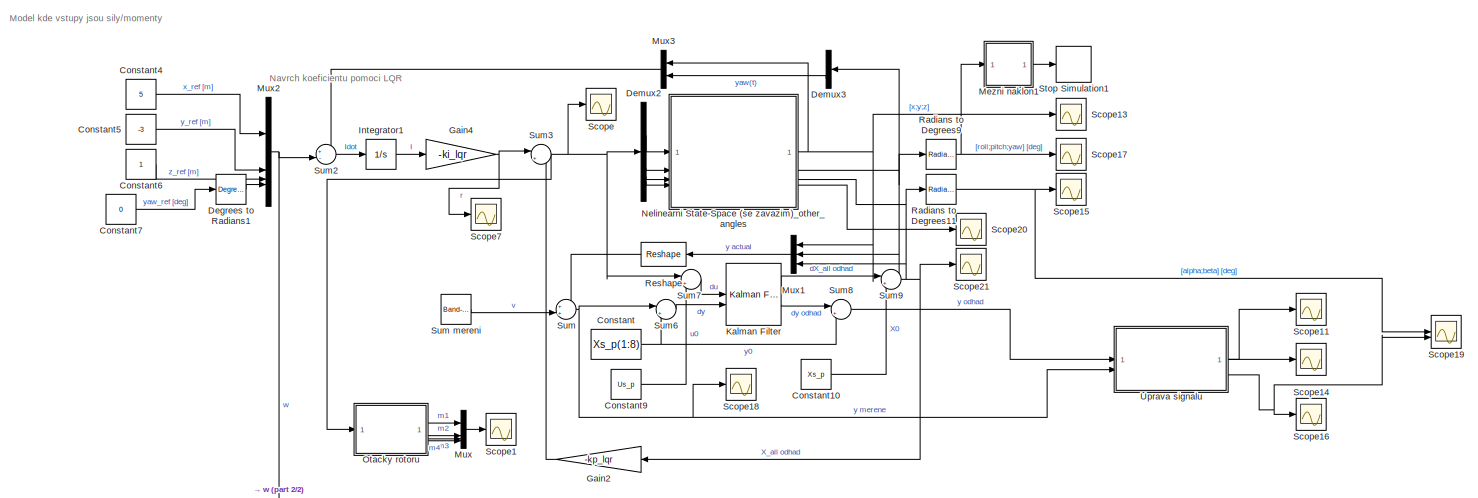
[diagram: root canvas - part 1/2, full width, top band]
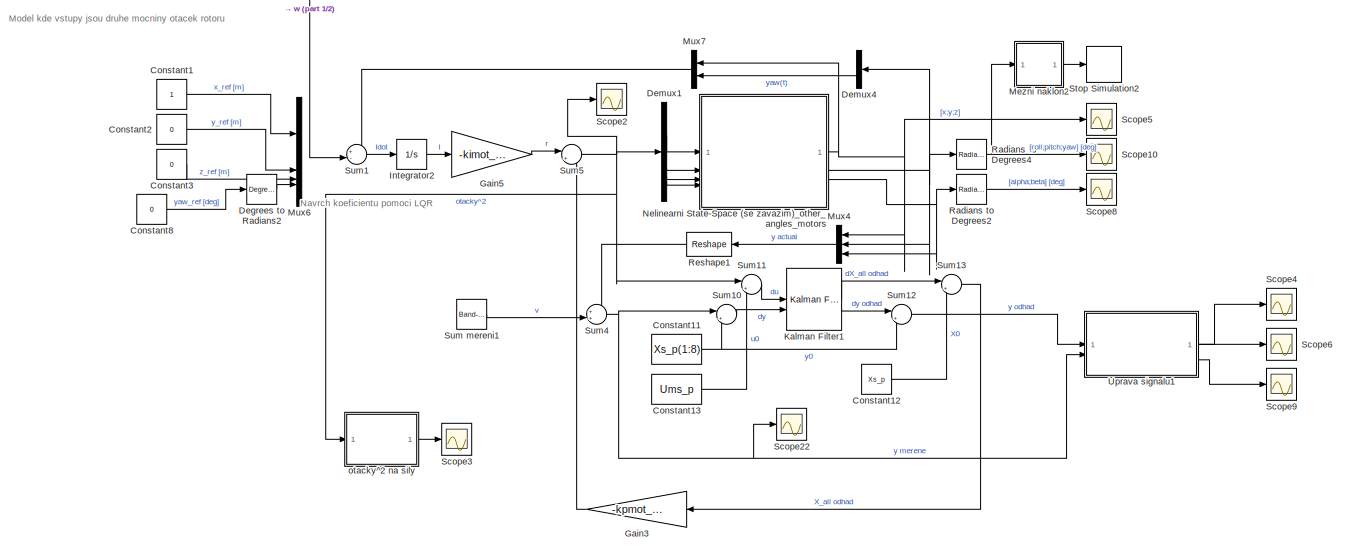
[diagram: root canvas - part 2/2, full width, bottom band]
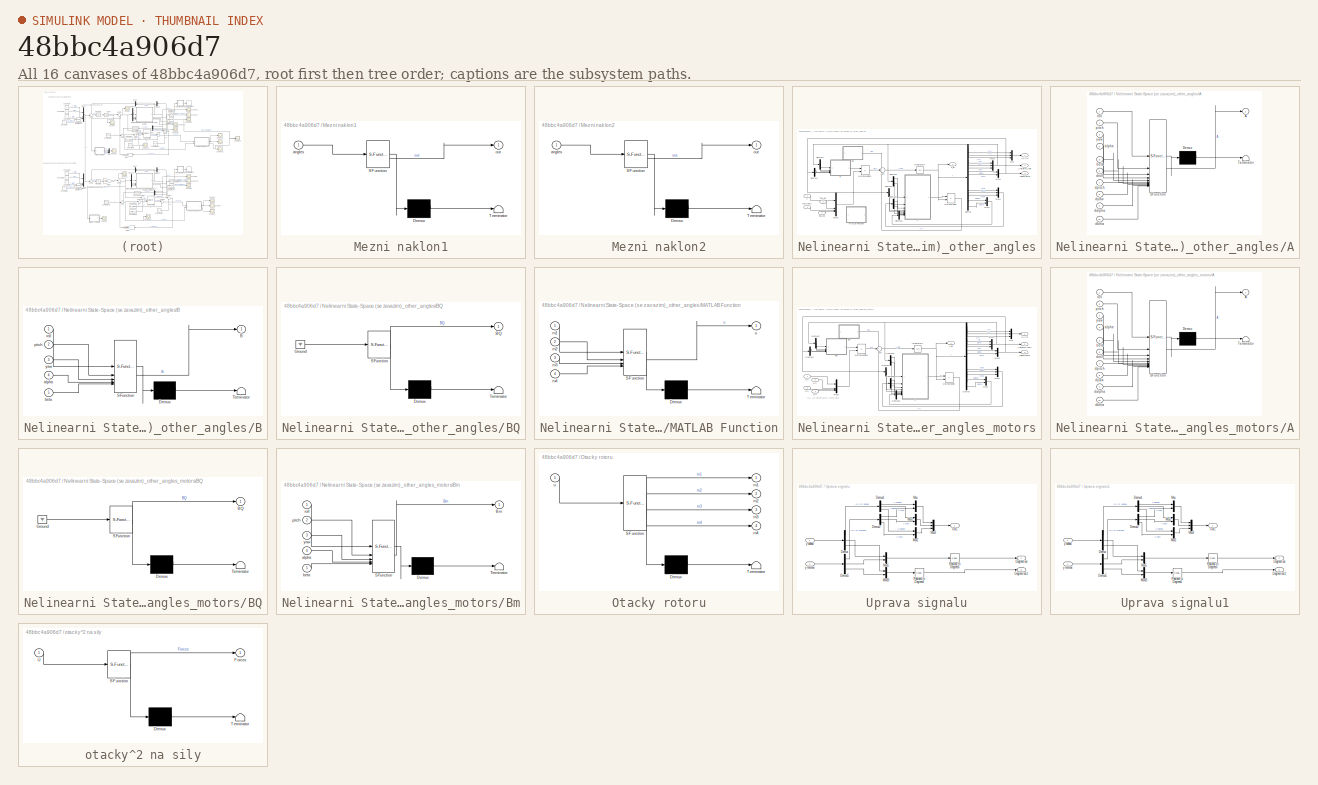
[diagram: thumbnail index - all 16 canvases of the model, root first then tree order]
MODEL slx_48bbc4a906d7
KIND model
CONFIG AbsTol = auto
CONFIG EnableMultiTasking = off
CONFIG FixedStep = 0.05
CONFIG MaxStep = auto
CONFIG MinStep = auto
CONFIG RelTol = 1e-3
CONFIG SampleTimeConstraint = Unconstrained
CONFIG SolverName = ode4
CONFIG StartTime = 0.0
CONFIG StopTime = 20
BLOCK [Constant] Constant
  Value = Xs_p(1:8)
BLOCK [Constant] Constant1
  Commented = on
BLOCK [Constant] Constant10
  Value = Xs_p
BLOCK [Constant] Constant11
  Value = Xs_p(1:8)
BLOCK [Constant] Constant12
  Value = Xs_p
BLOCK [Constant] Constant13
  Value = Ums_p
BLOCK [Constant] Constant2
  Commented = on
  Value = 0
BLOCK [Constant] Constant3
  Commented = on
  Value = 0
BLOCK [Constant] Constant4
  Value = 5
BLOCK [Constant] Constant5
  Value = -3
BLOCK [Constant] Constant6
BLOCK [Constant] Constant7
  Value = 0
BLOCK [Constant] Constant8
  Commented = on
  Value = 0
BLOCK [Constant] Constant9
  Value = Us_p
BLOCK [Reference] Degrees to Radians1  REF=simulink_extras/Transformations/Degrees to
Radians
  SourceBlock = simulink_extras/Transformations/Degrees to\nRadians
  SourceType = DegreesToRadians
BLOCK [Reference] Degrees to Radians2  REF=simulink_extras/Transformations/Degrees to
Radians
  Commented = on
  SourceBlock = simulink_extras/Transformations/Degrees to\nRadians
  SourceType = DegreesToRadians
BLOCK [Demux] Demux1
BLOCK [Demux] Demux2
BLOCK [Demux] Demux3
  Outputs = 3
BLOCK [Demux] Demux4
  Outputs = 3
BLOCK [Gain] Gain2
  Gain = -kp_lqr
  Multiplication = Matrix(K*u)
BLOCK [Gain] Gain3
  Gain = -kpmot_lqr
  Multiplication = Matrix(K*u)
BLOCK [Gain] Gain4
  Gain = -ki_lqr
  Multiplication = Matrix(K*u)
BLOCK [Gain] Gain5
  Gain = -kimot_lqr
  Multiplication = Matrix(K*u)
BLOCK [Integrator] Integrator1
BLOCK [Integrator] Integrator2
BLOCK [Reference] Kalman Filter  REF=ctrlSharedLib/Kalman Filter
  LibrarySourceBlock = cstblocks/State Estimation/Kalman Filter
  SourceBlock = ctrlSharedLib/Kalman Filter
  SourceType = ctrlKalmanFilter
BLOCK [Reference] Kalman Filter1  REF=ctrlSharedLib/Kalman Filter
  LibrarySourceBlock = cstblocks/State Estimation/Kalman Filter
  SourceBlock = ctrlSharedLib/Kalman Filter
  SourceType = ctrlKalmanFilter
BLOCK [SubSystem] Mezni naklon1
  ErrorFcn = Stateflow.Translate.translate
  PermitHierarchicalResolution = ExplicitOnly
  SFBlockType = MATLAB Function
  TreatAsAtomicUnit = on
BLOCK [Demux] Mezni naklon1/ Demux 
  Outputs = 1
BLOCK [S-Function] Mezni naklon1/ SFunction 
  EnableBusSupport = on
  FunctionName = sf_sfun
  PortCounts = [1 2]
  SFcnIsStateOwnerBlock = off
  SFunctionDeploymentMode = off
  Tag = Stateflow S-Function 2
BLOCK [Terminator] Mezni naklon1/ Terminator 
BLOCK [Inport] Mezni naklon1/angles
BLOCK [Outport] Mezni naklon1/out
BLOCK [SubSystem] Mezni naklon2
  ErrorFcn = Stateflow.Translate.translate
  PermitHierarchicalResolution = ExplicitOnly
  SFBlockType = MATLAB Function
  TreatAsAtomicUnit = on
BLOCK [Demux] Mezni naklon2/ Demux 
  Outputs = 1
BLOCK [S-Function] Mezni naklon2/ SFunction 
  EnableBusSupport = on
  FunctionName = sf_sfun
  PortCounts = [1 2]
  SFcnIsStateOwnerBlock = off
  SFunctionDeploymentMode = off
  Tag = Stateflow S-Function 9
BLOCK [Terminator] Mezni naklon2/ Terminator 
BLOCK [Inport] Mezni naklon2/angles
BLOCK [Outport] Mezni naklon2/out
BLOCK [Mux] Mux
  DisplayOption = bar
BLOCK [Mux] Mux1
  DisplayOption = bar
  Inputs = 3
BLOCK [Mux] Mux2
  DisplayOption = bar
BLOCK [Mux] Mux3
  DisplayOption = bar
  Inputs = 2
BLOCK [Mux] Mux4
  DisplayOption = bar
  Inputs = 3
BLOCK [Mux] Mux6
  Commented = on
  DisplayOption = bar
BLOCK [Mux] Mux7
  DisplayOption = bar
  Inputs = 2
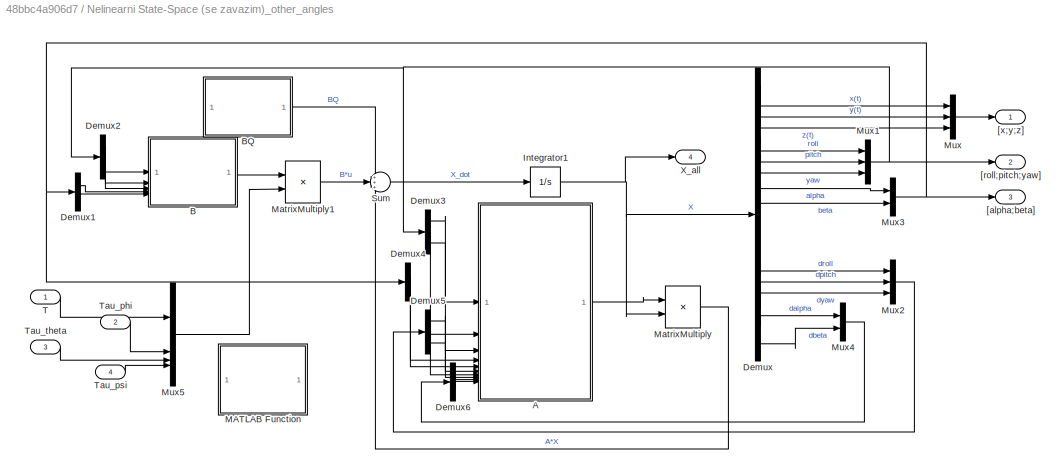
BLOCK [SubSystem] Nelinearni State-Space (se zavazim)_other_angles
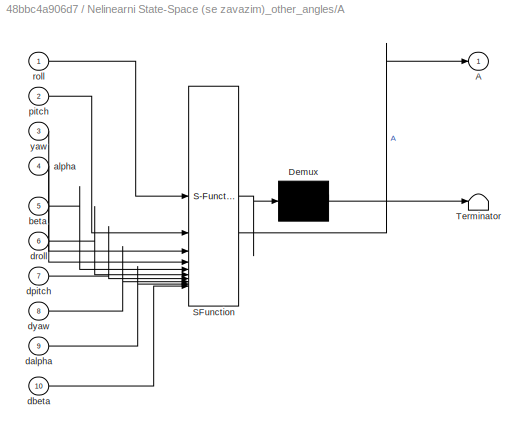
BLOCK [SubSystem] Nelinearni State-Space (se zavazim)_other_angles/A
  ErrorFcn = Stateflow.Translate.translate
  PermitHierarchicalResolution = ExplicitOnly
  SFBlockType = MATLAB Function
  TreatAsAtomicUnit = on
BLOCK [Demux] Nelinearni State-Space (se zavazim)_other_angles/A/ Demux 
  Outputs = 1
BLOCK [S-Function] Nelinearni State-Space (se zavazim)_other_angles/A/ SFunction 
  EnableBusSupport = on
  FunctionName = sf_sfun
  Parameters = Ip,Ixx,Iyy,Izz,M,d,m
  PortCounts = [10 2]
  SFcnIsStateOwnerBlock = off
  SFunctionDeploymentMode = off
  Tag = Stateflow S-Function 21
BLOCK [Terminator] Nelinearni State-Space (se zavazim)_other_angles/A/ Terminator 
BLOCK [Outport] Nelinearni State-Space (se zavazim)_other_angles/A/A
BLOCK [Inport] Nelinearni State-Space (se zavazim)_other_angles/A/alpha
  Port = 4
BLOCK [Inport] Nelinearni State-Space (se zavazim)_other_angles/A/beta
  Port = 5
BLOCK [Inport] Nelinearni State-Space (se zavazim)_other_angles/A/dalpha
  Port = 9
BLOCK [Inport] Nelinearni State-Space (se zavazim)_other_angles/A/dbeta
  Port = 10
BLOCK [Inport] Nelinearni State-Space (se zavazim)_other_angles/A/dpitch
  Port = 7
BLOCK [Inport] Nelinearni State-Space (se zavazim)_other_angles/A/droll
  Port = 6
BLOCK [Inport] Nelinearni State-Space (se zavazim)_other_angles/A/dyaw
  Port = 8
BLOCK [Inport] Nelinearni State-Space (se zavazim)_other_angles/A/pitch
  Port = 2
BLOCK [Inport] Nelinearni State-Space (se zavazim)_other_angles/A/roll
BLOCK [Inport] Nelinearni State-Space (se zavazim)_other_angles/A/yaw
  Port = 3
BLOCK [SubSystem] Nelinearni State-Space (se zavazim)_other_angles/B
  ErrorFcn = Stateflow.Translate.translate
  PermitHierarchicalResolution = ExplicitOnly
  SFBlockType = MATLAB Function
  TreatAsAtomicUnit = on
BLOCK [Demux] Nelinearni State-Space (se zavazim)_other_angles/B/ Demux 
  Outputs = 1
BLOCK [S-Function] Nelinearni State-Space (se zavazim)_other_angles/B/ SFunction 
  EnableBusSupport = on
  FunctionName = sf_sfun
  Parameters = Ip,Ixx,Iyy,Izz,M,d,m
  PortCounts = [5 2]
  SFcnIsStateOwnerBlock = off
  SFunctionDeploymentMode = off
  Tag = Stateflow S-Function 22
BLOCK [Terminator] Nelinearni State-Space (se zavazim)_other_angles/B/ Terminator 
BLOCK [Outport] Nelinearni State-Space (se zavazim)_other_angles/B/B
BLOCK [Inport] Nelinearni State-Space (se zavazim)_other_angles/B/alpha
  Port = 4
BLOCK [Inport] Nelinearni State-Space (se zavazim)_other_angles/B/beta
  Port = 5
BLOCK [Inport] Nelinearni State-Space (se zavazim)_other_angles/B/pitch
  Port = 2
BLOCK [Inport] Nelinearni State-Space (se zavazim)_other_angles/B/roll
BLOCK [Inport] Nelinearni State-Space (se zavazim)_other_angles/B/yaw
  Port = 3
BLOCK [SubSystem] Nelinearni State-Space (se zavazim)_other_angles/BQ
  ErrorFcn = Stateflow.Translate.translate
  PermitHierarchicalResolution = ExplicitOnly
  SFBlockType = MATLAB Function
  TreatAsAtomicUnit = on
BLOCK [Demux] Nelinearni State-Space (se zavazim)_other_angles/BQ/ Demux 
  Outputs = 1
BLOCK [Ground] Nelinearni State-Space (se zavazim)_other_angles/BQ/ Ground 
BLOCK [S-Function] Nelinearni State-Space (se zavazim)_other_angles/BQ/ SFunction 
  EnableBusSupport = on
  FunctionName = sf_sfun
  Parameters = g
  PortCounts = [1 2]
  SFcnIsStateOwnerBlock = off
  SFunctionDeploymentMode = off
  Tag = Stateflow S-Function 23
BLOCK [Terminator] Nelinearni State-Space (se zavazim)_other_angles/BQ/ Terminator 
BLOCK [Outport] Nelinearni State-Space (se zavazim)_other_angles/BQ/BQ
BLOCK [Demux] Nelinearni State-Space (se zavazim)_other_angles/Demux
  Outputs = 16
BLOCK [Demux] Nelinearni State-Space (se zavazim)_other_angles/Demux1
  Outputs = 2
BLOCK [Demux] Nelinearni State-Space (se zavazim)_other_angles/Demux2
  Outputs = 3
BLOCK [Demux] Nelinearni State-Space (se zavazim)_other_angles/Demux3
  Outputs = 3
BLOCK [Demux] Nelinearni State-Space (se zavazim)_other_angles/Demux4
  Outputs = 2
BLOCK [Demux] Nelinearni State-Space (se zavazim)_other_angles/Demux5
  Outputs = 3
BLOCK [Demux] Nelinearni State-Space (se zavazim)_other_angles/Demux6
  Outputs = 2
BLOCK [Integrator] Nelinearni State-Space (se zavazim)_other_angles/Integrator1
  InitialCondition = Xinit_ss
BLOCK [SubSystem] Nelinearni State-Space (se zavazim)_other_angles/MATLAB Function
  Commented = on
  ErrorFcn = Stateflow.Translate.translate
  PermitHierarchicalResolution = ExplicitOnly
  SFBlockType = MATLAB Function
  TreatAsAtomicUnit = on
BLOCK [Demux] Nelinearni State-Space (se zavazim)_other_angles/MATLAB Function/ Demux 
  Outputs = 1
BLOCK [S-Function] Nelinearni State-Space (se zavazim)_other_angles/MATLAB Function/ SFunction 
  EnableBusSupport = on
  FunctionName = sf_sfun
  Parameters = L,b_moment,k_thrust
  PortCounts = [4 2]
  SFcnIsStateOwnerBlock = off
  SFunctionDeploymentMode = off
  Tag = Stateflow S-Function 24
BLOCK [Terminator] Nelinearni State-Space (se zavazim)_other_angles/MATLAB Function/ Terminator 
BLOCK [Inport] Nelinearni State-Space (se zavazim)_other_angles/MATLAB Function/m1
BLOCK [Inport] Nelinearni State-Space (se zavazim)_other_angles/MATLAB Function/m2
  Port = 2
BLOCK [Inport] Nelinearni State-Space (se zavazim)_other_angles/MATLAB Function/m3
  Port = 3
BLOCK [Inport] Nelinearni State-Space (se zavazim)_other_angles/MATLAB Function/m4
  Port = 4
BLOCK [Outport] Nelinearni State-Space (se zavazim)_other_angles/MATLAB Function/u
BLOCK [Product] Nelinearni State-Space (se zavazim)_other_angles/MatrixMultiply
  Multiplication = Matrix(*)
BLOCK [Product] Nelinearni State-Space (se zavazim)_other_angles/MatrixMultiply1
  Multiplication = Matrix(*)
BLOCK [Mux] Nelinearni State-Space (se zavazim)_other_angles/Mux
  DisplayOption = bar
  Inputs = 3
BLOCK [Mux] Nelinearni State-Space (se zavazim)_other_angles/Mux1
  DisplayOption = bar
  Inputs = 3
BLOCK [Mux] Nelinearni State-Space (se zavazim)_other_angles/Mux2
  DisplayOption = bar
  Inputs = 3
BLOCK [Mux] Nelinearni State-Space (se zavazim)_other_angles/Mux3
  DisplayOption = bar
  Inputs = 2
BLOCK [Mux] Nelinearni State-Space (se zavazim)_other_angles/Mux4
  DisplayOption = bar
  Inputs = 2
BLOCK [Mux] Nelinearni State-Space (se zavazim)_other_angles/Mux5
  DisplayOption = bar
BLOCK [Sum] Nelinearni State-Space (se zavazim)_other_angles/Sum
  Inputs = +++
BLOCK [Inport] Nelinearni State-Space (se zavazim)_other_angles/T
BLOCK [Inport] Nelinearni State-Space (se zavazim)_other_angles/Tau_phi
  Port = 2
BLOCK [Inport] Nelinearni State-Space (se zavazim)_other_angles/Tau_psi
  Port = 4
BLOCK [Inport] Nelinearni State-Space (se zavazim)_other_angles/Tau_theta
  Port = 3
BLOCK [Outport] Nelinearni State-Space (se zavazim)_other_angles/X_all
  Port = 4
BLOCK [Outport] Nelinearni State-Space (se zavazim)_other_angles/[alpha;beta]
  Port = 3
BLOCK [Outport] Nelinearni State-Space (se zavazim)_other_angles/[roll;pitch;yaw]
  Port = 2
BLOCK [Outport] Nelinearni State-Space (se zavazim)_other_angles/[x;y;z]
BLOCK [SubSystem] Nelinearni State-Space (se zavazim)_other_angles_motors
BLOCK [SubSystem] Nelinearni State-Space (se zavazim)_other_angles_motors/A
  ErrorFcn = Stateflow.Translate.translate
  PermitHierarchicalResolution = ExplicitOnly
  SFBlockType = MATLAB Function
  TreatAsAtomicUnit = on
BLOCK [Demux] Nelinearni State-Space (se zavazim)_other_angles_motors/A/ Demux 
  Outputs = 1
BLOCK [S-Function] Nelinearni State-Space (se zavazim)_other_angles_motors/A/ SFunction 
  EnableBusSupport = on
  FunctionName = sf_sfun
  Parameters = Ip,Ixx,Iyy,Izz,M,d,m
  PortCounts = [10 2]
  SFcnIsStateOwnerBlock = off
  SFunctionDeploymentMode = off
  Tag = Stateflow S-Function 10
BLOCK [Terminator] Nelinearni State-Space (se zavazim)_other_angles_motors/A/ Terminator 
BLOCK [Outport] Nelinearni State-Space (se zavazim)_other_angles_motors/A/A
BLOCK [Inport] Nelinearni State-Space (se zavazim)_other_angles_motors/A/alpha
  Port = 4
BLOCK [Inport] Nelinearni State-Space (se zavazim)_other_angles_motors/A/beta
  Port = 5
BLOCK [Inport] Nelinearni State-Space (se zavazim)_other_angles_motors/A/dalpha
  Port = 9
BLOCK [Inport] Nelinearni State-Space (se zavazim)_other_angles_motors/A/dbeta
  Port = 10
BLOCK [Inport] Nelinearni State-Space (se zavazim)_other_angles_motors/A/dpitch
  Port = 7
BLOCK [Inport] Nelinearni State-Space (se zavazim)_other_angles_motors/A/droll
  Port = 6
BLOCK [Inport] Nelinearni State-Space (se zavazim)_other_angles_motors/A/dyaw
  Port = 8
BLOCK [Inport] Nelinearni State-Space (se zavazim)_other_angles_motors/A/pitch
  Port = 2
BLOCK [Inport] Nelinearni State-Space (se zavazim)_other_angles_motors/A/roll
BLOCK [Inport] Nelinearni State-Space (se zavazim)_other_angles_motors/A/yaw
  Port = 3
BLOCK [SubSystem] Nelinearni State-Space (se zavazim)_other_angles_motors/BQ
  ErrorFcn = Stateflow.Translate.translate
  PermitHierarchicalResolution = ExplicitOnly
  SFBlockType = MATLAB Function
  TreatAsAtomicUnit = on
BLOCK [Demux] Nelinearni State-Space (se zavazim)_other_angles_motors/BQ/ Demux 
  Outputs = 1
BLOCK [Ground] Nelinearni State-Space (se zavazim)_other_angles_motors/BQ/ Ground 
BLOCK [S-Function] Nelinearni State-Space (se zavazim)_other_angles_motors/BQ/ SFunction 
  EnableBusSupport = on
  FunctionName = sf_sfun
  Parameters = g
  PortCounts = [1 2]
  SFcnIsStateOwnerBlock = off
  SFunctionDeploymentMode = off
  Tag = Stateflow S-Function 12
BLOCK [Terminator] Nelinearni State-Space (se zavazim)_other_angles_motors/BQ/ Terminator 
BLOCK [Outport] Nelinearni State-Space (se zavazim)_other_angles_motors/BQ/BQ
BLOCK [SubSystem] Nelinearni State-Space (se zavazim)_other_angles_motors/Bm
  ErrorFcn = Stateflow.Translate.translate
  PermitHierarchicalResolution = ExplicitOnly
  SFBlockType = MATLAB Function
  TreatAsAtomicUnit = on
BLOCK [Demux] Nelinearni State-Space (se zavazim)_other_angles_motors/Bm/ Demux 
  Outputs = 1
BLOCK [S-Function] Nelinearni State-Space (se zavazim)_other_angles_motors/Bm/ SFunction 
  EnableBusSupport = on
  FunctionName = sf_sfun
  Parameters = Ixx,Iyy,Izz,M,b_moment,d,k_thrust,l,m
  PortCounts = [5 2]
  SFcnIsStateOwnerBlock = off
  SFunctionDeploymentMode = off
  Tag = Stateflow S-Function 11
BLOCK [Terminator] Nelinearni State-Space (se zavazim)_other_angles_motors/Bm/ Terminator 
BLOCK [Outport] Nelinearni State-Space (se zavazim)_other_angles_motors/Bm/Bm
BLOCK [Inport] Nelinearni State-Space (se zavazim)_other_angles_motors/Bm/alpha
  Port = 4
BLOCK [Inport] Nelinearni State-Space (se zavazim)_other_angles_motors/Bm/beta
  Port = 5
BLOCK [Inport] Nelinearni State-Space (se zavazim)_other_angles_motors/Bm/pitch
  Port = 2
BLOCK [Inport] Nelinearni State-Space (se zavazim)_other_angles_motors/Bm/roll
BLOCK [Inport] Nelinearni State-Space (se zavazim)_other_angles_motors/Bm/yaw
  Port = 3
BLOCK [Demux] Nelinearni State-Space (se zavazim)_other_angles_motors/Demux
  Outputs = 16
BLOCK [Demux] Nelinearni State-Space (se zavazim)_other_angles_motors/Demux1
  Outputs = 2
BLOCK [Demux] Nelinearni State-Space (se zavazim)_other_angles_motors/Demux2
  Outputs = 3
BLOCK [Demux] Nelinearni State-Space (se zavazim)_other_angles_motors/Demux3
  Outputs = 3
BLOCK [Demux] Nelinearni State-Space (se zavazim)_other_angles_motors/Demux4
  Outputs = 2
BLOCK [Demux] Nelinearni State-Space (se zavazim)_other_angles_motors/Demux5
  Outputs = 3
BLOCK [Demux] Nelinearni State-Space (se zavazim)_other_angles_motors/Demux6
  Outputs = 2
BLOCK [Integrator] Nelinearni State-Space (se zavazim)_other_angles_motors/Integrator1
  InitialCondition = Xinit_ss
BLOCK [Product] Nelinearni State-Space (se zavazim)_other_angles_motors/MatrixMultiply
  Multiplication = Matrix(*)
BLOCK [Product] Nelinearni State-Space (se zavazim)_other_angles_motors/MatrixMultiply1
  Multiplication = Matrix(*)
BLOCK [Mux] Nelinearni State-Space (se zavazim)_other_angles_motors/Mux
  DisplayOption = bar
  Inputs = 3
BLOCK [Mux] Nelinearni State-Space (se zavazim)_other_angles_motors/Mux1
  DisplayOption = bar
  Inputs = 3
BLOCK [Mux] Nelinearni State-Space (se zavazim)_other_angles_motors/Mux2
  DisplayOption = bar
  Inputs = 3
BLOCK [Mux] Nelinearni State-Space (se zavazim)_other_angles_motors/Mux3
  DisplayOption = bar
  Inputs = 2
BLOCK [Mux] Nelinearni State-Space (se zavazim)_other_angles_motors/Mux4
  DisplayOption = bar
  Inputs = 2
BLOCK [Mux] Nelinearni State-Space (se zavazim)_other_angles_motors/Mux5
  DisplayOption = bar
BLOCK [Sum] Nelinearni State-Space (se zavazim)_other_angles_motors/Sum
  Inputs = +++
BLOCK [Inport] Nelinearni State-Space (se zavazim)_other_angles_motors/U1
BLOCK [Inport] Nelinearni State-Space (se zavazim)_other_angles_motors/U2
  Port = 2
BLOCK [Inport] Nelinearni State-Space (se zavazim)_other_angles_motors/U3
  Port = 3
BLOCK [Inport] Nelinearni State-Space (se zavazim)_other_angles_motors/U4
  Port = 4
BLOCK [Outport] Nelinearni State-Space (se zavazim)_other_angles_motors/X_all
  Port = 4
BLOCK [Outport] Nelinearni State-Space (se zavazim)_other_angles_motors/[alpha;beta]
  Port = 3
BLOCK [Outport] Nelinearni State-Space (se zavazim)_other_angles_motors/[roll;pitch;yaw]
  Port = 2
BLOCK [Outport] Nelinearni State-Space (se zavazim)_other_angles_motors/[x;y;z]
BLOCK [SubSystem] Otacky rotoru
  ErrorFcn = Stateflow.Translate.translate
  PermitHierarchicalResolution = ExplicitOnly
  SFBlockType = MATLAB Function
  TreatAsAtomicUnit = on
BLOCK [Demux] Otacky rotoru/ Demux 
  Outputs = 1
BLOCK [S-Function] Otacky rotoru/ SFunction 
  EnableBusSupport = on
  FunctionName = sf_sfun
  Parameters = b_moment,k_thrust,l
  PortCounts = [1 5]
  SFcnIsStateOwnerBlock = off
  SFunctionDeploymentMode = off
  Tag = Stateflow S-Function 1
BLOCK [Terminator] Otacky rotoru/ Terminator 
BLOCK [Outport] Otacky rotoru/m1
BLOCK [Outport] Otacky rotoru/m2
  Port = 2
BLOCK [Outport] Otacky rotoru/m3
  Port = 3
BLOCK [Outport] Otacky rotoru/m4
  Port = 4
BLOCK [Inport] Otacky rotoru/u
BLOCK [Reference] Radians to Degrees11  REF=simulink_extras/Transformations/Radians
to Degrees
  SourceBlock = simulink_extras/Transformations/Radians\nto Degrees
  SourceType = RadiansToDegrees
BLOCK [Reference] Radians to Degrees2  REF=simulink_extras/Transformations/Radians
to Degrees
  SourceBlock = simulink_extras/Transformations/Radians\nto Degrees
  SourceType = RadiansToDegrees
BLOCK [Reference] Radians to Degrees4  REF=simulink_extras/Transformations/Radians
to Degrees
  SourceBlock = simulink_extras/Transformations/Radians\nto Degrees
  SourceType = RadiansToDegrees
BLOCK [Reference] Radians to Degrees9  REF=simulink_extras/Transformations/Radians
to Degrees
  SourceBlock = simulink_extras/Transformations/Radians\nto Degrees
  SourceType = RadiansToDegrees
BLOCK [Reshape] Reshape
  OutputDimensionality = Customize
  OutputDimensions = [8,1]
BLOCK [Reshape] Reshape1
  OutputDimensionality = Customize
  OutputDimensions = [8,1]
BLOCK [Scope] Scope
  Floating = off
  NumInputPorts = 1
  ScopeSpecificationString = Simulink.scopes.TimeScopeBlockCfg('CurrentConfiguration', extmgr.ConfigurationSet(extmgr.Configuration('Core','General UI',true),extmgr.Configuration('Core','Source UI',true),extmgr.Configuration('Sources','WiredSimulink',true,'DataLoggingVariableName','ScopeData1'),extmgr.Configuration('Visuals','Time Domain',true,'SerializedDisplays',{struct('MinYLimReal','-4.62317','MaxYLimReal','40.70588','YLa...<+1670ch>
BLOCK [Scope] Scope1
  Floating = off
  NumInputPorts = 1
  ScopeSpecificationString = Simulink.scopes.TimeScopeBlockCfg('CurrentConfiguration', extmgr.ConfigurationSet(extmgr.Configuration('Core','General UI',true),extmgr.Configuration('Core','Source UI',true),extmgr.Configuration('Sources','WiredSimulink',true,'DataLoggingVariableName','ScopeData1'),extmgr.Configuration('Visuals','Time Domain',true,'SerializedDisplays',{struct('MinYLimReal','-548.00845','MaxYLimReal','4932.07609',...<+1645ch>
BLOCK [Scope] Scope10
  Floating = off
  NumInputPorts = 1
  ScopeSpecificationString = Simulink.scopes.TimeScopeBlockCfg('CurrentConfiguration', extmgr.ConfigurationSet(extmgr.Configuration('Core','General UI',true,'FigureColor',[1 1 1]),extmgr.Configuration('Core','Source UI',true),extmgr.Configuration('Sources','WiredSimulink',true,'DataLoggingVariableName','ScopeData1'),extmgr.Configuration('Visuals','Time Domain',true,'SerializedDisplays',{struct('MinYLimReal','-6.31022','MaxYLi...<+1953ch>
BLOCK [Scope] Scope11
  Floating = off
  NumInputPorts = 1
  ScopeSpecificationString = Simulink.scopes.TimeScopeBlockCfg('CurrentConfiguration', extmgr.ConfigurationSet(extmgr.Configuration('Core','General UI',true),extmgr.Configuration('Core','Source UI',true),extmgr.Configuration('Sources','WiredSimulink',true,'DataLoggingVariableName','ScopeData1'),extmgr.Configuration('Visuals','Time Domain',true,'SerializedDisplays',{struct('MinYLimReal','-6.26546','MaxYLimReal','6.38914','YLab...<+1794ch>
BLOCK [Scope] Scope13
  Floating = off
  NumInputPorts = 1
  ScopeSpecificationString = Simulink.scopes.TimeScopeBlockCfg('CurrentConfiguration', extmgr.ConfigurationSet(extmgr.Configuration('Core','General UI',true,'FigureColor',[1 1 1]),extmgr.Configuration('Core','Source UI',true),extmgr.Configuration('Sources','WiredSimulink',true,'DataLoggingVariableName','ScopeData5'),extmgr.Configuration('Visuals','Time Domain',true,'SerializedDisplays',{struct('MinYLimReal','-4.0861','MaxYLim...<+1877ch>
BLOCK [Scope] Scope14
  Floating = off
  NumInputPorts = 1
  ScopeSpecificationString = Simulink.scopes.TimeScopeBlockCfg('CurrentConfiguration', extmgr.ConfigurationSet(extmgr.Configuration('Core','General UI',true),extmgr.Configuration('Core','Source UI',true),extmgr.Configuration('Sources','WiredSimulink',true,'DataLoggingVariableName','ScopeData2'),extmgr.Configuration('Visuals','Time Domain',true,'SerializedDisplays',{struct('MinYLimReal','-2.55932','MaxYLimReal','2.47697','YLab...<+1783ch>
BLOCK [Scope] Scope15
  Floating = off
  NumInputPorts = 1
  ScopeSpecificationString = Simulink.scopes.TimeScopeBlockCfg('CurrentConfiguration', extmgr.ConfigurationSet(extmgr.Configuration('Core','General UI',true,'FigureColor',[1 1 1]),extmgr.Configuration('Core','Source UI',true),extmgr.Configuration('Sources','WiredSimulink',true,'DataLoggingVariableName','ScopeData2'),extmgr.Configuration('Visuals','Time Domain',true,'SerializedDisplays',{struct('MinYLimReal','-7.29306','MaxYLi...<+1887ch>
BLOCK [Scope] Scope16
  Floating = off
  NumInputPorts = 1
  ScopeSpecificationString = Simulink.scopes.TimeScopeBlockCfg('CurrentConfiguration', extmgr.ConfigurationSet(extmgr.Configuration('Core','General UI',true),extmgr.Configuration('Core','Source UI',true),extmgr.Configuration('Sources','WiredSimulink',true,'DataLoggingVariableName','ScopeData3'),extmgr.Configuration('Visuals','Time Domain',true,'SerializedDisplays',{struct('MinYLimReal','-25.60956','MaxYLimReal','22.61476','YL...<+1699ch>
BLOCK [Scope] Scope17
  Floating = off
  NumInputPorts = 1
  ScopeSpecificationString = Simulink.scopes.TimeScopeBlockCfg('CurrentConfiguration', extmgr.ConfigurationSet(extmgr.Configuration('Core','General UI',true,'FigureColor',[1 1 1]),extmgr.Configuration('Core','Source UI',true),extmgr.Configuration('Sources','WiredSimulink',true,'DataLoggingVariableName','ScopeData1'),extmgr.Configuration('Visuals','Time Domain',true,'SerializedDisplays',{struct('MinYLimReal','-5.27445','MaxYLi...<+1924ch>
BLOCK [Scope] Scope18
  Floating = off
  NumInputPorts = 1
  ScopeSpecificationString = Simulink.scopes.TimeScopeBlockCfg('CurrentConfiguration', extmgr.ConfigurationSet(extmgr.Configuration('Core','General UI',true),extmgr.Configuration('Core','Source UI',true),extmgr.Configuration('Sources','WiredSimulink',true,'DataLoggingVariableName','ScopeData1'),extmgr.Configuration('Visuals','Time Domain',true,'SerializedDisplays',{struct('MinYLimReal','-11.22065','MaxYLimReal','3.49149','YLa...<+1626ch>
BLOCK [Scope] Scope19
  Floating = off
  NumInputPorts = 2
  ScopeSpecificationString = Simulink.scopes.TimeScopeBlockCfg('CurrentConfiguration', extmgr.ConfigurationSet(extmgr.Configuration('Core','General UI',true),extmgr.Configuration('Core','Source UI',true),extmgr.Configuration('Sources','WiredSimulink',true,'DataLoggingVariableName','ScopeData2'),extmgr.Configuration('Visuals','Time Domain',true,'SerializedDisplays',{struct('MinYLimReal','-7.75977','MaxYLimReal','7.08423','YLab...<+1768ch>
BLOCK [Scope] Scope2
  Floating = off
  NumInputPorts = 1
  ScopeSpecificationString = Simulink.scopes.TimeScopeBlockCfg('CurrentConfiguration', extmgr.ConfigurationSet(extmgr.Configuration('Core','General UI',true),extmgr.Configuration('Core','Source UI',true),extmgr.Configuration('Sources','WiredSimulink',true,'DataLoggingVariableName','ScopeData4'),extmgr.Configuration('Visuals','Time Domain',true,'SerializedDisplays',{struct('MinYLimReal','-515.02183','MaxYLimReal','4635.19648',...<+1791ch>
BLOCK [Scope] Scope20
  Floating = off
  NumInputPorts = 1
  ScopeSpecificationString = Simulink.scopes.TimeScopeBlockCfg('CurrentConfiguration', extmgr.ConfigurationSet(extmgr.Configuration('Core','General UI',true),extmgr.Configuration('Core','Source UI',true),extmgr.Configuration('Sources','WiredSimulink',true,'DataLoggingVariableName','ScopeData5'),extmgr.Configuration('Visuals','Time Domain',true,'SerializedDisplays',{struct('MinYLimReal','-4.08615','MaxYLimReal','6.13453','YLab...<+2766ch>
BLOCK [Scope] Scope21
  Floating = off
  NumInputPorts = 1
  ScopeSpecificationString = Simulink.scopes.TimeScopeBlockCfg('CurrentConfiguration', extmgr.ConfigurationSet(extmgr.Configuration('Core','General UI',true),extmgr.Configuration('Core','Source UI',true),extmgr.Configuration('Sources','WiredSimulink',true,'DataLoggingVariableName','ScopeData6'),extmgr.Configuration('Visuals','Time Domain',true,'SerializedDisplays',{struct('MinYLimReal','-4.08393','MaxYLimReal','6.13825','YLab...<+2161ch>
BLOCK [Scope] Scope22
  Floating = off
  NumInputPorts = 1
  ScopeSpecificationString = Simulink.scopes.TimeScopeBlockCfg('CurrentConfiguration', extmgr.ConfigurationSet(extmgr.Configuration('Core','General UI',true),extmgr.Configuration('Core','Source UI',true),extmgr.Configuration('Sources','WiredSimulink',true,'DataLoggingVariableName','ScopeData7'),extmgr.Configuration('Visuals','Time Domain',true,'SerializedDisplays',{struct('MinYLimReal','-11.22065','MaxYLimReal','3.49149','YLa...<+1626ch>
BLOCK [Scope] Scope3
  Floating = off
  NumInputPorts = 1
  ScopeSpecificationString = Simulink.scopes.TimeScopeBlockCfg('CurrentConfiguration', extmgr.ConfigurationSet(extmgr.Configuration('Core','General UI',true),extmgr.Configuration('Core','Source UI',true),extmgr.Configuration('Sources','WiredSimulink',true,'DataLoggingVariableName','ScopeData1'),extmgr.Configuration('Visuals','Time Domain',true,'SerializedDisplays',{struct('MinYLimReal','-4.7553','MaxYLimReal','42.47879','YLab...<+1693ch>
BLOCK [Scope] Scope4
  Floating = off
  NumInputPorts = 1
  ScopeSpecificationString = Simulink.scopes.TimeScopeBlockCfg('CurrentConfiguration', extmgr.ConfigurationSet(extmgr.Configuration('Core','General UI',true),extmgr.Configuration('Core','Source UI',true),extmgr.Configuration('Sources','WiredSimulink',true,'DataLoggingVariableName','ScopeData2'),extmgr.Configuration('Visuals','Time Domain',true,'SerializedDisplays',{struct('MinYLimReal','-16.25029','MaxYLimReal','7.59832','YLa...<+1799ch>
BLOCK [Scope] Scope5
  Floating = off
  NumInputPorts = 1
  ScopeSpecificationString = Simulink.scopes.TimeScopeBlockCfg('CurrentConfiguration', extmgr.ConfigurationSet(extmgr.Configuration('Core','General UI',true,'FigureColor',[1 1 1]),extmgr.Configuration('Core','Source UI',true),extmgr.Configuration('Sources','WiredSimulink',true,'DataLoggingVariableName','ScopeData7'),extmgr.Configuration('Visuals','Time Domain',true,'SerializedDisplays',{struct('MinYLimReal','-16.24821','MaxYL...<+1883ch>
BLOCK [Scope] Scope6
  Floating = off
  NumInputPorts = 1
  ScopeSpecificationString = Simulink.scopes.TimeScopeBlockCfg('CurrentConfiguration', extmgr.ConfigurationSet(extmgr.Configuration('Core','General UI',true),extmgr.Configuration('Core','Source UI',true),extmgr.Configuration('Sources','WiredSimulink',true,'DataLoggingVariableName','ScopeData3'),extmgr.Configuration('Visuals','Time Domain',true,'SerializedDisplays',{struct('MinYLimReal','-13.16896','MaxYLimReal','36.59684','YL...<+1797ch>
BLOCK [Scope] Scope7
  Floating = off
  NumInputPorts = 1
  ScopeSpecificationString = Simulink.scopes.TimeScopeBlockCfg('CurrentConfiguration', extmgr.ConfigurationSet(extmgr.Configuration('Core','General UI',true),extmgr.Configuration('Core','Source UI',true),extmgr.Configuration('Sources','WiredSimulink',true,'DataLoggingVariableName','ScopeData13'),extmgr.Configuration('Visuals','Time Domain',true,'SerializedDisplays',{struct('MinYLimReal','-23.15028','MaxYLimReal','207.42913','...<+1555ch>
BLOCK [Scope] Scope8
  Floating = off
  NumInputPorts = 1
  ScopeSpecificationString = Simulink.scopes.TimeScopeBlockCfg('CurrentConfiguration', extmgr.ConfigurationSet(extmgr.Configuration('Core','General UI',true,'FigureColor',[1 1 1]),extmgr.Configuration('Core','Source UI',true),extmgr.Configuration('Sources','WiredSimulink',true,'DataLoggingVariableName','ScopeData1'),extmgr.Configuration('Visuals','Time Domain',true,'SerializedDisplays',{struct('MinYLimReal','-8.7448','MaxYLim...<+1885ch>
BLOCK [Scope] Scope9
  Floating = off
  NumInputPorts = 1
  ScopeSpecificationString = Simulink.scopes.TimeScopeBlockCfg('CurrentConfiguration', extmgr.ConfigurationSet(extmgr.Configuration('Core','General UI',true),extmgr.Configuration('Core','Source UI',true),extmgr.Configuration('Sources','WiredSimulink',true,'DataLoggingVariableName','ScopeData4'),extmgr.Configuration('Visuals','Time Domain',true,'SerializedDisplays',{struct('MinYLimReal','-25.60956','MaxYLimReal','22.61476','YL...<+1699ch>
BLOCK [Stop] Stop Simulation1
BLOCK [Stop] Stop Simulation2
BLOCK [Sum] Sum
  Inputs = ++|
BLOCK [Reference] Sum mereni  REF=simulink/Sources/Band-Limited
White Noise
  SourceBlock = simulink/Sources/Band-Limited\nWhite Noise
  SourceType = Band-Limited White Noise.
BLOCK [Reference] Sum mereni1  REF=simulink/Sources/Band-Limited
White Noise
  SourceBlock = simulink/Sources/Band-Limited\nWhite Noise
  SourceType = Band-Limited White Noise.
BLOCK [Sum] Sum1
  Inputs = +-|
BLOCK [Sum] Sum10
  Inputs = |+-
BLOCK [Sum] Sum11
  Inputs = |+-
BLOCK [Sum] Sum12
  Inputs = |++
BLOCK [Sum] Sum13
  Inputs = |++
BLOCK [Sum] Sum2
  Inputs = +-|
BLOCK [Sum] Sum3
  Inputs = |++
BLOCK [Sum] Sum4
  Inputs = ++|
BLOCK [Sum] Sum5
  Inputs = |++
BLOCK [Sum] Sum6
  Inputs = |+-
BLOCK [Sum] Sum7
  Inputs = |+-
BLOCK [Sum] Sum8
  Inputs = |++
BLOCK [Sum] Sum9
  Inputs = |++
BLOCK [SubSystem] Uprava signalu
BLOCK [Outport] Uprava signalu/Degrees out
  Port = 2
BLOCK [Outport] Uprava signalu/Degrees out1
  Port = 3
BLOCK [Demux] Uprava signalu/Demux
  Outputs = 3
BLOCK [Demux] Uprava signalu/Demux1
  Outputs = 3
BLOCK [Demux] Uprava signalu/Demux2
  Outputs = 3
BLOCK [Demux] Uprava signalu/Demux5
  Outputs = 3
BLOCK [Mux] Uprava signalu/Mux
  DisplayOption = bar
  Inputs = 2
BLOCK [Mux] Uprava signalu/Mux1
  DisplayOption = bar
  Inputs = 2
BLOCK [Mux] Uprava signalu/Mux10
  DisplayOption = bar
  Inputs = 2
BLOCK [Mux] Uprava signalu/Mux2
  DisplayOption = bar
  Inputs = 2
BLOCK [Mux] Uprava signalu/Mux3
  DisplayOption = bar
  Inputs = 3
BLOCK [Mux] Uprava signalu/Mux5
  DisplayOption = bar
  Inputs = 2
BLOCK [Outport] Uprava signalu/Out1
BLOCK [Reference] Uprava signalu/Radians to Degrees5  REF=simulink_extras/Transformations/Radians
to Degrees
  SourceBlock = simulink_extras/Transformations/Radians\nto Degrees
  SourceType = RadiansToDegrees
BLOCK [Reference] Uprava signalu/Radians to Degrees6  REF=simulink_extras/Transformations/Radians
to Degrees
  SourceBlock = simulink_extras/Transformations/Radians\nto Degrees
  SourceType = RadiansToDegrees
BLOCK [Inport] Uprava signalu/y merene
  Port = 2
BLOCK [Inport] Uprava signalu/y odhad
BLOCK [SubSystem] Uprava signalu1
BLOCK [Outport] Uprava signalu1/Degrees out
  Port = 2
BLOCK [Outport] Uprava signalu1/Degrees out1
  Port = 3
BLOCK [Demux] Uprava signalu1/Demux
  Outputs = 3
BLOCK [Demux] Uprava signalu1/Demux1
  Outputs = 3
BLOCK [Demux] Uprava signalu1/Demux2
  Outputs = 3
BLOCK [Demux] Uprava signalu1/Demux5
  Outputs = 3
BLOCK [Mux] Uprava signalu1/Mux
  DisplayOption = bar
  Inputs = 2
BLOCK [Mux] Uprava signalu1/Mux1
  DisplayOption = bar
  Inputs = 2
BLOCK [Mux] Uprava signalu1/Mux10
  DisplayOption = bar
  Inputs = 2
BLOCK [Mux] Uprava signalu1/Mux2
  DisplayOption = bar
  Inputs = 2
BLOCK [Mux] Uprava signalu1/Mux3
  DisplayOption = bar
  Inputs = 3
BLOCK [Mux] Uprava signalu1/Mux5
  DisplayOption = bar
  Inputs = 2
BLOCK [Outport] Uprava signalu1/Out1
BLOCK [Reference] Uprava signalu1/Radians to Degrees5  REF=simulink_extras/Transformations/Radians
to Degrees
  SourceBlock = simulink_extras/Transformations/Radians\nto Degrees
  SourceType = RadiansToDegrees
BLOCK [Reference] Uprava signalu1/Radians to Degrees6  REF=simulink_extras/Transformations/Radians
to Degrees
  SourceBlock = simulink_extras/Transformations/Radians\nto Degrees
  SourceType = RadiansToDegrees
BLOCK [Inport] Uprava signalu1/y merene
  Port = 2
BLOCK [Inport] Uprava signalu1/y odhad
BLOCK [SubSystem] otacky^2 na sily
  ErrorFcn = Stateflow.Translate.translate
  PermitHierarchicalResolution = ExplicitOnly
  SFBlockType = MATLAB Function
  TreatAsAtomicUnit = on
BLOCK [Demux] otacky^2 na sily/ Demux 
  Outputs = 1
BLOCK [S-Function] otacky^2 na sily/ SFunction 
  EnableBusSupport = on
  FunctionName = sf_sfun
  Parameters = b_moment,k_thrust,l
  PortCounts = [1 2]
  SFcnIsStateOwnerBlock = off
  SFunctionDeploymentMode = off
  Tag = Stateflow S-Function 14
BLOCK [Terminator] otacky^2 na sily/ Terminator 
BLOCK [Outport] otacky^2 na sily/Forces
BLOCK [Inport] otacky^2 na sily/U
ANNOTATION (root): Navrch koeficientu pomoci LQR
ANNOTATION (root): Model kde vstupy jsou druhe mocniny otacek rotoru
ANNOTATION (root): Model kde vstupy jsou sily/momenty
ANNOTATION Nelinearni State-Space (se zavazim)_other_angles_motors: U1, U2 atd je m1^2, m2^2 atd
LINE Constant10:1 -> Sum9:2
NET Constant11:1 -> Sum10:2, Sum12:2
LINE Constant12:1 -> Sum13:2
LINE Constant13:1 -> Sum11:2
LINE Constant1:1 -> Mux6:1
LINE Constant2:1 -> Mux6:2
LINE Constant3:1 -> Mux6:3
LINE Constant4:1 -> Mux2:1
LINE Constant5:1 -> Mux2:2
LINE Constant6:1 -> Mux2:3
LINE Constant7:1 -> Degrees to Radians1:1
LINE Constant8:1 -> Degrees to Radians2:1
LINE Constant9:1 -> Sum7:2
NET Constant:1 -> Sum6:2, Sum8:2
LINE Degrees to Radians1:1 -> Mux2:4
LINE Degrees to Radians2:1 -> Mux6:4
LINE Demux1:1 -> Nelinearni State-Space (se zavazim)_other_angles_motors:1
LINE Demux1:2 -> Nelinearni State-Space (se zavazim)_other_angles_motors:2
LINE Demux1:3 -> Nelinearni State-Space (se zavazim)_other_angles_motors:3
LINE Demux1:4 -> Nelinearni State-Space (se zavazim)_other_angles_motors:4
LINE Demux2:1 -> Nelinearni State-Space (se zavazim)_other_angles:1
LINE Demux2:2 -> Nelinearni State-Space (se zavazim)_other_angles:2
LINE Demux2:3 -> Nelinearni State-Space (se zavazim)_other_angles:3
LINE Demux2:4 -> Nelinearni State-Space (se zavazim)_other_angles:4
LINE Demux3:3 -> Mux3:2
LINE Demux4:3 -> Mux7:2
LINE Gain2:1 -> Sum3:2
LINE Gain3:1 -> Sum5:2
NET Gain4:1 -> Scope7:1, Sum3:1
LINE Gain5:1 -> Sum5:1
LINE Integrator1:1 -> Gain4:1
LINE Integrator2:1 -> Gain5:1
LINE Kalman Filter1:1 -> Sum13:1
LINE Kalman Filter1:2 -> Sum12:1
LINE Kalman Filter:1 -> Sum9:1
LINE Kalman Filter:2 -> Sum8:1
LINE Mezni naklon1:1 -> Stop Simulation1:1
LINE Mezni naklon2:1 -> Stop Simulation2:1
LINE Mux1:1 -> Reshape:1
NET Mux2:1 -> Sum1:2, Sum2:2
LINE Mux3:1 -> Sum2:1
LINE Mux4:1 -> Reshape1:1
LINE Mux7:1 -> Sum1:1
LINE Mux:1 -> Scope1:1
LINE Nelinearni State-Space (se zavazim)_other_angles/A:1 -> Nelinearni State-Space (se zavazim)_other_angles/MatrixMultiply:1
LINE Nelinearni State-Space (se zavazim)_other_angles/B:1 -> Nelinearni State-Space (se zavazim)_other_angles/MatrixMultiply1:1
LINE Nelinearni State-Space (se zavazim)_other_angles/BQ:1 -> Nelinearni State-Space (se zavazim)_other_angles/Sum:1
LINE Nelinearni State-Space (se zavazim)_other_angles/Demux1:1 -> Nelinearni State-Space (se zavazim)_other_angles/B:4
LINE Nelinearni State-Space (se zavazim)_other_angles/Demux1:2 -> Nelinearni State-Space (se zavazim)_other_angles/B:5
LINE Nelinearni State-Space (se zavazim)_other_angles/Demux2:1 -> Nelinearni State-Space (se zavazim)_other_angles/B:1
LINE Nelinearni State-Space (se zavazim)_other_angles/Demux2:2 -> Nelinearni State-Space (se zavazim)_other_angles/B:2
LINE Nelinearni State-Space (se zavazim)_other_angles/Demux2:3 -> Nelinearni State-Space (se zavazim)_other_angles/B:3
LINE Nelinearni State-Space (se zavazim)_other_angles/Demux3:1 -> Nelinearni State-Space (se zavazim)_other_angles/A:1
LINE Nelinearni State-Space (se zavazim)_other_angles/Demux3:2 -> Nelinearni State-Space (se zavazim)_other_angles/A:2
LINE Nelinearni State-Space (se zavazim)_other_angles/Demux3:3 -> Nelinearni State-Space (se zavazim)_other_angles/A:3
LINE Nelinearni State-Space (se zavazim)_other_angles/Demux4:1 -> Nelinearni State-Space (se zavazim)_other_angles/A:4
LINE Nelinearni State-Space (se zavazim)_other_angles/Demux4:2 -> Nelinearni State-Space (se zavazim)_other_angles/A:5
LINE Nelinearni State-Space (se zavazim)_other_angles/Demux5:1 -> Nelinearni State-Space (se zavazim)_other_angles/A:6
LINE Nelinearni State-Space (se zavazim)_other_angles/Demux5:2 -> Nelinearni State-Space (se zavazim)_other_angles/A:7
LINE Nelinearni State-Space (se zavazim)_other_angles/Demux5:3 -> Nelinearni State-Space (se zavazim)_other_angles/A:8
LINE Nelinearni State-Space (se zavazim)_other_angles/Demux6:1 -> Nelinearni State-Space (se zavazim)_other_angles/A:9
LINE Nelinearni State-Space (se zavazim)_other_angles/Demux6:2 -> Nelinearni State-Space (se zavazim)_other_angles/A:10
LINE Nelinearni State-Space (se zavazim)_other_angles/Demux:1 -> Nelinearni State-Space (se zavazim)_other_angles/Mux:1
LINE Nelinearni State-Space (se zavazim)_other_angles/Demux:12 -> Nelinearni State-Space (se zavazim)_other_angles/Mux2:1
LINE Nelinearni State-Space (se zavazim)_other_angles/Demux:13 -> Nelinearni State-Space (se zavazim)_other_angles/Mux2:2
LINE Nelinearni State-Space (se zavazim)_other_angles/Demux:14 -> Nelinearni State-Space (se zavazim)_other_angles/Mux2:3
LINE Nelinearni State-Space (se zavazim)_other_angles/Demux:15 -> Nelinearni State-Space (se zavazim)_other_angles/Mux4:1
LINE Nelinearni State-Space (se zavazim)_other_angles/Demux:16 -> Nelinearni State-Space (se zavazim)_other_angles/Mux4:2
LINE Nelinearni State-Space (se zavazim)_other_angles/Demux:2 -> Nelinearni State-Space (se zavazim)_other_angles/Mux:2
LINE Nelinearni State-Space (se zavazim)_other_angles/Demux:3 -> Nelinearni State-Space (se zavazim)_other_angles/Mux:3
LINE Nelinearni State-Space (se zavazim)_other_angles/Demux:4 -> Nelinearni State-Space (se zavazim)_other_angles/Mux1:1
LINE Nelinearni State-Space (se zavazim)_other_angles/Demux:5 -> Nelinearni State-Space (se zavazim)_other_angles/Mux1:2
LINE Nelinearni State-Space (se zavazim)_other_angles/Demux:6 -> Nelinearni State-Space (se zavazim)_other_angles/Mux1:3
LINE Nelinearni State-Space (se zavazim)_other_angles/Demux:7 -> Nelinearni State-Space (se zavazim)_other_angles/Mux3:1
LINE Nelinearni State-Space (se zavazim)_other_angles/Demux:8 -> Nelinearni State-Space (se zavazim)_other_angles/Mux3:2
NET Nelinearni State-Space (se zavazim)_other_angles/Integrator1:1 -> Nelinearni State-Space (se zavazim)_other_angles/Demux:1, Nelinearni State-Space (se zavazim)_other_angles/MatrixMultiply:2, Nelinearni State-Space (se zavazim)_other_angles/X_all:1
LINE Nelinearni State-Space (se zavazim)_other_angles/MatrixMultiply1:1 -> Nelinearni State-Space (se zavazim)_other_angles/Sum:2
LINE Nelinearni State-Space (se zavazim)_other_angles/MatrixMultiply:1 -> Nelinearni State-Space (se zavazim)_other_angles/Sum:3
NET Nelinearni State-Space (se zavazim)_other_angles/Mux1:1 -> Nelinearni State-Space (se zavazim)_other_angles/Demux2:1, Nelinearni State-Space (se zavazim)_other_angles/Demux3:1, Nelinearni State-Space (se zavazim)_other_angles/[roll;pitch;yaw]:1
LINE Nelinearni State-Space (se zavazim)_other_angles/Mux2:1 -> Nelinearni State-Space (se zavazim)_other_angles/Demux5:1
NET Nelinearni State-Space (se zavazim)_other_angles/Mux3:1 -> Nelinearni State-Space (se zavazim)_other_angles/Demux1:1, Nelinearni State-Space (se zavazim)_other_angles/Demux4:1, Nelinearni State-Space (se zavazim)_other_angles/[alpha;beta]:1
LINE Nelinearni State-Space (se zavazim)_other_angles/Mux4:1 -> Nelinearni State-Space (se zavazim)_other_angles/Demux6:1
LINE Nelinearni State-Space (se zavazim)_other_angles/Mux5:1 -> Nelinearni State-Space (se zavazim)_other_angles/MatrixMultiply1:2
LINE Nelinearni State-Space (se zavazim)_other_angles/Mux:1 -> Nelinearni State-Space (se zavazim)_other_angles/[x;y;z]:1
LINE Nelinearni State-Space (se zavazim)_other_angles/Sum:1 -> Nelinearni State-Space (se zavazim)_other_angles/Integrator1:1
LINE Nelinearni State-Space (se zavazim)_other_angles/T:1 -> Nelinearni State-Space (se zavazim)_other_angles/Mux5:1
LINE Nelinearni State-Space (se zavazim)_other_angles/Tau_phi:1 -> Nelinearni State-Space (se zavazim)_other_angles/Mux5:2
LINE Nelinearni State-Space (se zavazim)_other_angles/Tau_psi:1 -> Nelinearni State-Space (se zavazim)_other_angles/Mux5:4
LINE Nelinearni State-Space (se zavazim)_other_angles/Tau_theta:1 -> Nelinearni State-Space (se zavazim)_other_angles/Mux5:3
NET Nelinearni State-Space (se zavazim)_other_angles:1 -> Mux1:1, Mux3:1, Scope13:1
NET Nelinearni State-Space (se zavazim)_other_angles:2 -> Demux3:1, Mux1:2, Radians to Degrees9:1
NET Nelinearni State-Space (se zavazim)_other_angles:3 -> Mux1:3, Radians to Degrees11:1
LINE Nelinearni State-Space (se zavazim)_other_angles:4 -> Scope20:1
LINE Nelinearni State-Space (se zavazim)_other_angles_motors/A:1 -> Nelinearni State-Space (se zavazim)_other_angles_motors/MatrixMultiply:1
LINE Nelinearni State-Space (se zavazim)_other_angles_motors/BQ:1 -> Nelinearni State-Space (se zavazim)_other_angles_motors/Sum:1
LINE Nelinearni State-Space (se zavazim)_other_angles_motors/Bm:1 -> Nelinearni State-Space (se zavazim)_other_angles_motors/MatrixMultiply1:1
LINE Nelinearni State-Space (se zavazim)_other_angles_motors/Demux1:1 -> Nelinearni State-Space (se zavazim)_other_angles_motors/Bm:4
LINE Nelinearni State-Space (se zavazim)_other_angles_motors/Demux1:2 -> Nelinearni State-Space (se zavazim)_other_angles_motors/Bm:5
LINE Nelinearni State-Space (se zavazim)_other_angles_motors/Demux2:1 -> Nelinearni State-Space (se zavazim)_other_angles_motors/Bm:1
LINE Nelinearni State-Space (se zavazim)_other_angles_motors/Demux2:2 -> Nelinearni State-Space (se zavazim)_other_angles_motors/Bm:2
LINE Nelinearni State-Space (se zavazim)_other_angles_motors/Demux2:3 -> Nelinearni State-Space (se zavazim)_other_angles_motors/Bm:3
LINE Nelinearni State-Space (se zavazim)_other_angles_motors/Demux3:1 -> Nelinearni State-Space (se zavazim)_other_angles_motors/A:1
LINE Nelinearni State-Space (se zavazim)_other_angles_motors/Demux3:2 -> Nelinearni State-Space (se zavazim)_other_angles_motors/A:2
LINE Nelinearni State-Space (se zavazim)_other_angles_motors/Demux3:3 -> Nelinearni State-Space (se zavazim)_other_angles_motors/A:3
LINE Nelinearni State-Space (se zavazim)_other_angles_motors/Demux4:1 -> Nelinearni State-Space (se zavazim)_other_angles_motors/A:4
LINE Nelinearni State-Space (se zavazim)_other_angles_motors/Demux4:2 -> Nelinearni State-Space (se zavazim)_other_angles_motors/A:5
LINE Nelinearni State-Space (se zavazim)_other_angles_motors/Demux5:1 -> Nelinearni State-Space (se zavazim)_other_angles_motors/A:6
LINE Nelinearni State-Space (se zavazim)_other_angles_motors/Demux5:2 -> Nelinearni State-Space (se zavazim)_other_angles_motors/A:7
LINE Nelinearni State-Space (se zavazim)_other_angles_motors/Demux5:3 -> Nelinearni State-Space (se zavazim)_other_angles_motors/A:8
LINE Nelinearni State-Space (se zavazim)_other_angles_motors/Demux6:1 -> Nelinearni State-Space (se zavazim)_other_angles_motors/A:9
LINE Nelinearni State-Space (se zavazim)_other_angles_motors/Demux6:2 -> Nelinearni State-Space (se zavazim)_other_angles_motors/A:10
LINE Nelinearni State-Space (se zavazim)_other_angles_motors/Demux:1 -> Nelinearni State-Space (se zavazim)_other_angles_motors/Mux:1
LINE Nelinearni State-Space (se zavazim)_other_angles_motors/Demux:12 -> Nelinearni State-Space (se zavazim)_other_angles_motors/Mux2:1
LINE Nelinearni State-Space (se zavazim)_other_angles_motors/Demux:13 -> Nelinearni State-Space (se zavazim)_other_angles_motors/Mux2:2
LINE Nelinearni State-Space (se zavazim)_other_angles_motors/Demux:14 -> Nelinearni State-Space (se zavazim)_other_angles_motors/Mux2:3
LINE Nelinearni State-Space (se zavazim)_other_angles_motors/Demux:15 -> Nelinearni State-Space (se zavazim)_other_angles_motors/Mux4:1
LINE Nelinearni State-Space (se zavazim)_other_angles_motors/Demux:16 -> Nelinearni State-Space (se zavazim)_other_angles_motors/Mux4:2
LINE Nelinearni State-Space (se zavazim)_other_angles_motors/Demux:2 -> Nelinearni State-Space (se zavazim)_other_angles_motors/Mux:2
LINE Nelinearni State-Space (se zavazim)_other_angles_motors/Demux:3 -> Nelinearni State-Space (se zavazim)_other_angles_motors/Mux:3
LINE Nelinearni State-Space (se zavazim)_other_angles_motors/Demux:4 -> Nelinearni State-Space (se zavazim)_other_angles_motors/Mux1:1
LINE Nelinearni State-Space (se zavazim)_other_angles_motors/Demux:5 -> Nelinearni State-Space (se zavazim)_other_angles_motors/Mux1:2
LINE Nelinearni State-Space (se zavazim)_other_angles_motors/Demux:6 -> Nelinearni State-Space (se zavazim)_other_angles_motors/Mux1:3
LINE Nelinearni State-Space (se zavazim)_other_angles_motors/Demux:7 -> Nelinearni State-Space (se zavazim)_other_angles_motors/Mux3:1
LINE Nelinearni State-Space (se zavazim)_other_angles_motors/Demux:8 -> Nelinearni State-Space (se zavazim)_other_angles_motors/Mux3:2
NET Nelinearni State-Space (se zavazim)_other_angles_motors/Integrator1:1 -> Nelinearni State-Space (se zavazim)_other_angles_motors/Demux:1, Nelinearni State-Space (se zavazim)_other_angles_motors/MatrixMultiply:2, Nelinearni State-Space (se zavazim)_other_angles_motors/X_all:1
LINE Nelinearni State-Space (se zavazim)_other_angles_motors/MatrixMultiply1:1 -> Nelinearni State-Space (se zavazim)_other_angles_motors/Sum:2
LINE Nelinearni State-Space (se zavazim)_other_angles_motors/MatrixMultiply:1 -> Nelinearni State-Space (se zavazim)_other_angles_motors/Sum:3
NET Nelinearni State-Space (se zavazim)_other_angles_motors/Mux1:1 -> Nelinearni State-Space (se zavazim)_other_angles_motors/Demux2:1, Nelinearni State-Space (se zavazim)_other_angles_motors/Demux3:1, Nelinearni State-Space (se zavazim)_other_angles_motors/[roll;pitch;yaw]:1
LINE Nelinearni State-Space (se zavazim)_other_angles_motors/Mux2:1 -> Nelinearni State-Space (se zavazim)_other_angles_motors/Demux5:1
NET Nelinearni State-Space (se zavazim)_other_angles_motors/Mux3:1 -> Nelinearni State-Space (se zavazim)_other_angles_motors/Demux1:1, Nelinearni State-Space (se zavazim)_other_angles_motors/Demux4:1, Nelinearni State-Space (se zavazim)_other_angles_motors/[alpha;beta]:1
LINE Nelinearni State-Space (se zavazim)_other_angles_motors/Mux4:1 -> Nelinearni State-Space (se zavazim)_other_angles_motors/Demux6:1
LINE Nelinearni State-Space (se zavazim)_other_angles_motors/Mux5:1 -> Nelinearni State-Space (se zavazim)_other_angles_motors/MatrixMultiply1:2
LINE Nelinearni State-Space (se zavazim)_other_angles_motors/Mux:1 -> Nelinearni State-Space (se zavazim)_other_angles_motors/[x;y;z]:1
LINE Nelinearni State-Space (se zavazim)_other_angles_motors/Sum:1 -> Nelinearni State-Space (se zavazim)_other_angles_motors/Integrator1:1
LINE Nelinearni State-Space (se zavazim)_other_angles_motors/U1:1 -> Nelinearni State-Space (se zavazim)_other_angles_motors/Mux5:1
LINE Nelinearni State-Space (se zavazim)_other_angles_motors/U2:1 -> Nelinearni State-Space (se zavazim)_other_angles_motors/Mux5:2
LINE Nelinearni State-Space (se zavazim)_other_angles_motors/U3:1 -> Nelinearni State-Space (se zavazim)_other_angles_motors/Mux5:3
LINE Nelinearni State-Space (se zavazim)_other_angles_motors/U4:1 -> Nelinearni State-Space (se zavazim)_other_angles_motors/Mux5:4
NET Nelinearni State-Space (se zavazim)_other_angles_motors:1 -> Mux4:1, Mux7:1, Scope5:1
NET Nelinearni State-Space (se zavazim)_other_angles_motors:2 -> Demux4:1, Mux4:2, Radians to Degrees4:1
NET Nelinearni State-Space (se zavazim)_other_angles_motors:3 -> Mux4:3, Radians to Degrees2:1
LINE Otacky rotoru:1 -> Mux:1
LINE Otacky rotoru:2 -> Mux:2
LINE Otacky rotoru:3 -> Mux:3
LINE Otacky rotoru:4 -> Mux:4
NET Radians to Degrees11:1 -> Scope15:1, Scope19:1
LINE Radians to Degrees2:1 -> Scope8:1
NET Radians to Degrees4:1 -> Mezni naklon2:1, Scope10:1
NET Radians to Degrees9:1 -> Mezni naklon1:1, Scope17:1
LINE Reshape1:1 -> Sum4:1
LINE Reshape:1 -> Sum:1
LINE Sum mereni1:1 -> Sum4:2
LINE Sum mereni:1 -> Sum:2
LINE Sum10:1 -> Kalman Filter1:2
LINE Sum11:1 -> Kalman Filter1:1
LINE Sum12:1 -> Uprava signalu1:1
LINE Sum13:1 -> Gain3:1
LINE Sum1:1 -> Integrator2:1
LINE Sum2:1 -> Integrator1:1
NET Sum3:1 -> Demux2:1, Otacky rotoru:1, Scope:1, Sum7:1
NET Sum4:1 -> Scope22:1, Sum10:1, Uprava signalu1:2
NET Sum5:1 -> Demux1:1, Scope2:1, Sum11:1, otacky^2 na sily:1
LINE Sum6:1 -> Kalman Filter:2
LINE Sum7:1 -> Kalman Filter:1
LINE Sum8:1 -> Uprava signalu:1
NET Sum9:1 -> Gain2:1, Scope21:1
NET Sum:1 -> Scope18:1, Sum6:1, Uprava signalu:2
LINE Uprava signalu/Demux1:1 -> Uprava signalu/Mux:1
LINE Uprava signalu/Demux1:2 -> Uprava signalu/Mux1:1
LINE Uprava signalu/Demux1:3 -> Uprava signalu/Mux2:1
LINE Uprava signalu/Demux2:1 -> Uprava signalu/Mux:2
LINE Uprava signalu/Demux2:2 -> Uprava signalu/Mux1:2
LINE Uprava signalu/Demux2:3 -> Uprava signalu/Mux2:2
LINE Uprava signalu/Demux5:1 -> Uprava signalu/Demux2:1
LINE Uprava signalu/Demux5:2 -> Uprava signalu/Mux5:2
LINE Uprava signalu/Demux5:3 -> Uprava signalu/Mux10:2
LINE Uprava signalu/Demux:1 -> Uprava signalu/Demux1:1
LINE Uprava signalu/Demux:2 -> Uprava signalu/Mux5:1
LINE Uprava signalu/Demux:3 -> Uprava signalu/Mux10:1
LINE Uprava signalu/Mux10:1 -> Uprava signalu/Radians to Degrees6:1
LINE Uprava signalu/Mux1:1 -> Uprava signalu/Mux3:2
LINE Uprava signalu/Mux2:1 -> Uprava signalu/Mux3:3
LINE Uprava signalu/Mux3:1 -> Uprava signalu/Out1:1
LINE Uprava signalu/Mux5:1 -> Uprava signalu/Radians to Degrees5:1
LINE Uprava signalu/Mux:1 -> Uprava signalu/Mux3:1
LINE Uprava signalu/Radians to Degrees5:1 -> Uprava signalu/Degrees out:1
LINE Uprava signalu/Radians to Degrees6:1 -> Uprava signalu/Degrees out1:1
LINE Uprava signalu/y merene:1 -> Uprava signalu/Demux5:1
LINE Uprava signalu/y odhad:1 -> Uprava signalu/Demux:1
LINE Uprava signalu1/Demux1:1 -> Uprava signalu1/Mux:1
LINE Uprava signalu1/Demux1:2 -> Uprava signalu1/Mux1:1
LINE Uprava signalu1/Demux1:3 -> Uprava signalu1/Mux2:1
LINE Uprava signalu1/Demux2:1 -> Uprava signalu1/Mux:2
LINE Uprava signalu1/Demux2:2 -> Uprava signalu1/Mux1:2
LINE Uprava signalu1/Demux2:3 -> Uprava signalu1/Mux2:2
LINE Uprava signalu1/Demux5:1 -> Uprava signalu1/Demux2:1
LINE Uprava signalu1/Demux5:2 -> Uprava signalu1/Mux5:2
LINE Uprava signalu1/Demux5:3 -> Uprava signalu1/Mux10:2
LINE Uprava signalu1/Demux:1 -> Uprava signalu1/Demux1:1
LINE Uprava signalu1/Demux:2 -> Uprava signalu1/Mux5:1
LINE Uprava signalu1/Demux:3 -> Uprava signalu1/Mux10:1
LINE Uprava signalu1/Mux10:1 -> Uprava signalu1/Radians to Degrees6:1
LINE Uprava signalu1/Mux1:1 -> Uprava signalu1/Mux3:2
LINE Uprava signalu1/Mux2:1 -> Uprava signalu1/Mux3:3
LINE Uprava signalu1/Mux3:1 -> Uprava signalu1/Out1:1
LINE Uprava signalu1/Mux5:1 -> Uprava signalu1/Radians to Degrees5:1
LINE Uprava signalu1/Mux:1 -> Uprava signalu1/Mux3:1
LINE Uprava signalu1/Radians to Degrees5:1 -> Uprava signalu1/Degrees out:1
LINE Uprava signalu1/Radians to Degrees6:1 -> Uprava signalu1/Degrees out1:1
LINE Uprava signalu1/y merene:1 -> Uprava signalu1/Demux5:1
LINE Uprava signalu1/y odhad:1 -> Uprava signalu1/Demux:1
LINE Uprava signalu1:1 -> Scope4:1
LINE Uprava signalu1:2 -> Scope6:1
LINE Uprava signalu1:3 -> Scope9:1
LINE Uprava signalu:1 -> Scope11:1
LINE Uprava signalu:2 -> Scope14:1
NET Uprava signalu:3 -> Scope16:1, Scope19:2
LINE otacky^2 na sily:1 -> Scope3:1
note: NET lines group one-source signal fan-out (src -> all destinations, sorted); 1:1 wires keep LINE
CHART otacky^2 na sily states=1 transitions=1
  STATE_LABEL 'eML_blk_kernel()'
  STATE_LABEL 'SCRIPT:\nfunction Forces = fcn(U, l, b_moment, k_thrust)\nU1 = U(1);\nU2 = U(2);\nU3 = U(3);\nU4 = U(4);\n\nT = k_thrust*(U1 + U2 + U3 + U4);\nTau_phi = k_thrust*l*(U1 - U2 - U3 + U4);\nTau_theta = -k_thrust*l*(U1 + U2 - U3 - U4);\nTau_psi = b_moment*(U1 - U2 + U3 - U4);\n\nForces = [T; Tau_phi; Tau_theta; Tau_psi];\n'
CHART Nelinearni State-Space (se zavazim)_other_angles/A states=1 transitions=1
  STATE_LABEL 'eML_blk_kernel()'
  STATE_LABEL 'SCRIPT:\nfunction A = fcn(roll, pitch, yaw, alpha, beta, droll, dpitch, dyaw, dalpha, dbeta, Ixx, Iyy, Izz, M, Ip, d, m)\n% Matice dynamiky A\n\nphi_t = roll;\ntheta_t = pitch;\npsi_t = yaw;\n\nalpha_t = alpha;\nbeta_t = beta;\n\nphi_dot_t = droll;\ntheta_dot_t = dpitch;\npsi_dot_t = dyaw;\n\nalpha_dot_t = dalpha;\nbeta_dot_t = dbeta;\n\nA = [ \n0, 0, 0, 0, 0, 0, 0, 0, 1, 0, 0,                                       ...<+3608ch>'
CHART Nelinearni State-Space (se zavazim)_other_angles/B states=1 transitions=1
  STATE_LABEL 'eML_blk_kernel()'
  STATE_LABEL 'SCRIPT:\nfunction B = fcn(roll, pitch, yaw, alpha, beta, M, Ixx, Iyy, Izz, Ip, d, m)\n% Matice vstupu do soustavy kvadrokoptery se zavazim\n\nphi_t = roll;\ntheta_t = pitch;\npsi_t = yaw;\n\nalpha_t = alpha;\nbeta_t = beta;\n\nB = [ \n                                                                                                                                                                                 ...<+3608ch>'
CHART Nelinearni State-Space (se zavazim)_other_angles/BQ states=1 transitions=1
  STATE_LABEL 'eML_blk_kernel()'
  STATE_LABEL "SCRIPT:\nfunction BQ = fcn(g)\n% Matice vstupu tihy\nBQ = [0 0 0 0 0 0 0 0 0 0 -g 0 0 0 0 0]';"
CHART Nelinearni State-Space (se zavazim)_other_angles/MATLAB Function states=1 transitions=1
  STATE_LABEL 'eML_blk_kernel()'
  STATE_LABEL 'SCRIPT:\nfunction u = fcn(m1, m2, m3, m4, k_thrust, b_moment, L)\n\nThrust = k_thrust*(m1^2 + m2^2 + m3^2 + m4^2);\nTau_roll = L*k_thrust*(m1^2 + m4^2 - m2^2 - m3^2);\nTau_pitch = L*k_thrust*(m4^2 + m3^2 - m1^2 - m2^2);\nTau_yaw = b_moment*(m1^2 + m3^2 - m2^2 - m4^2);\n\nu = [Thrust; Tau_roll; Tau_pitch; Tau_yaw];\n'
CHART Otacky rotoru states=1 transitions=1
  STATE_LABEL 'eML_blk_kernel()'
  STATE_LABEL 'SCRIPT:\nfunction [m1, m2, m3, m4]= fcn(u, b_moment, k_thrust, l)\n\nT = u(1);\nTau_phi = u(2);\nTau_theta = u(3);\nTau_psi = u(4);\n\nm1 = ( (Tau_phi*b_moment - Tau_theta*b_moment + l*T*b_moment + l*Tau_psi*k_thrust)/(4*l*b_moment*k_thrust));\nm2 = ( (-Tau_theta*b_moment - Tau_phi*b_moment + l*T*b_moment - l*Tau_psi*k_thrust)/(4*l*b_moment*k_thrust));\nm3 = ( (Tau_theta*b_moment - Tau_phi*b_moment + l*T*b_...<+165ch>'
CHART Mezni naklon1 states=1 transitions=1
  STATE_LABEL 'eML_blk_kernel()'
  STATE_LABEL 'SCRIPT:\nfunction out = fcn(angles)\n\nif all(angles<=85) && all(angles>=-85)\n    out = 0;\nelse\n    out = 1;\nend'
CHART Mezni naklon2 states=1 transitions=1
  STATE_LABEL 'eML_blk_kernel()'
  STATE_LABEL 'SCRIPT:\nfunction out = fcn(angles)\n\nif all(angles<=85) && all(angles>=-85)\n    out = 0;\nelse\n    out = 1;\nend'
CHART Nelinearni State-Space (se zavazim)_other_angles_motors/A states=1 transitions=1
  STATE_LABEL 'eML_blk_kernel()'
  STATE_LABEL 'SCRIPT:\nfunction A = fcn(roll, pitch, yaw, alpha, beta, droll, dpitch, dyaw, dalpha, dbeta, Ixx, Iyy, Izz, M, Ip, d, m)\n% Matice dynamiky A\n\nphi_t = roll;\ntheta_t = pitch;\npsi_t = yaw;\n\nalpha_t = alpha;\nbeta_t = beta;\n\nphi_dot_t = droll;\ntheta_dot_t = dpitch;\npsi_dot_t = dyaw;\n\nalpha_dot_t = dalpha;\nbeta_dot_t = dbeta;\n\nA = [ \n0, 0, 0, 0, 0, 0, 0, 0, 1, 0, 0,                                       ...<+3608ch>'
CHART Nelinearni State-Space (se zavazim)_other_angles_motors/Bm states=1 transitions=1
  STATE_LABEL 'eML_blk_kernel()'
  STATE_LABEL 'SCRIPT:\nfunction Bm = fcn(roll, pitch, yaw, alpha, beta, M, Ixx, Iyy, Izz, d, m, k_thrust, b_moment, l)\n% Matice vstupu do soustavy kvadrokoptery se zavazim\n\nphi_t = roll;\ntheta_t = pitch;\npsi_t = yaw;\n\nalpha_t = alpha;\nbeta_t = beta;\n\nBm = [ \n                                                                                                                                                            ...<+3608ch>'
CHART Nelinearni State-Space (se zavazim)_other_angles_motors/BQ states=1 transitions=1
  STATE_LABEL 'eML_blk_kernel()'
  STATE_LABEL "SCRIPT:\nfunction BQ = fcn(g)\n% Matice vstupu tihy\nBQ = [0 0 0 0 0 0 0 0 0 0 -g 0 0 0 0 0]';"
CHART  states=0 transitions=0
CHART  states=0 transitions=0
CHART  states=0 transitions=0
CHART  states=0 transitions=0
CHART  states=0 transitions=0
CHART  states=0 transitions=0
CHART  states=0 transitions=0
CHART  states=0 transitions=0
CHART  states=0 transitions=0
CHART  states=0 transitions=0
CHART  states=0 transitions=0
